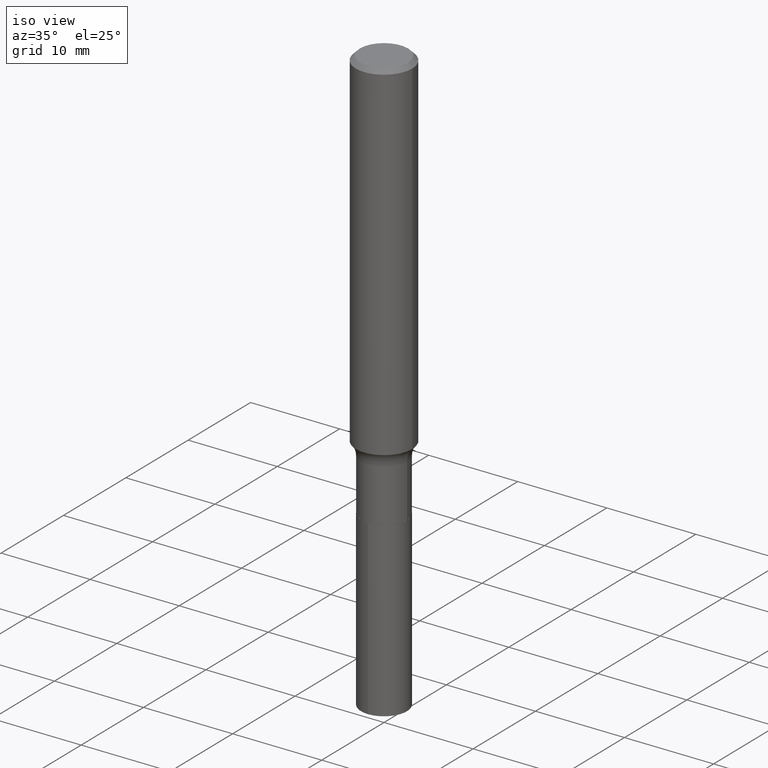
[diagram: clean part render]
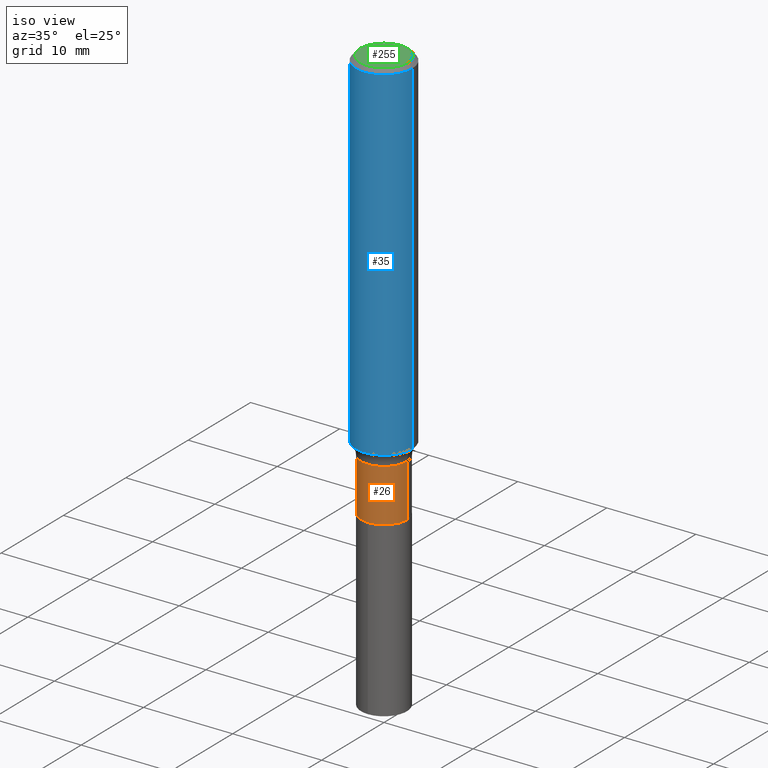
[diagram: same view with three faces highlighted in distinct colors, each labeled with its STEP entity id]
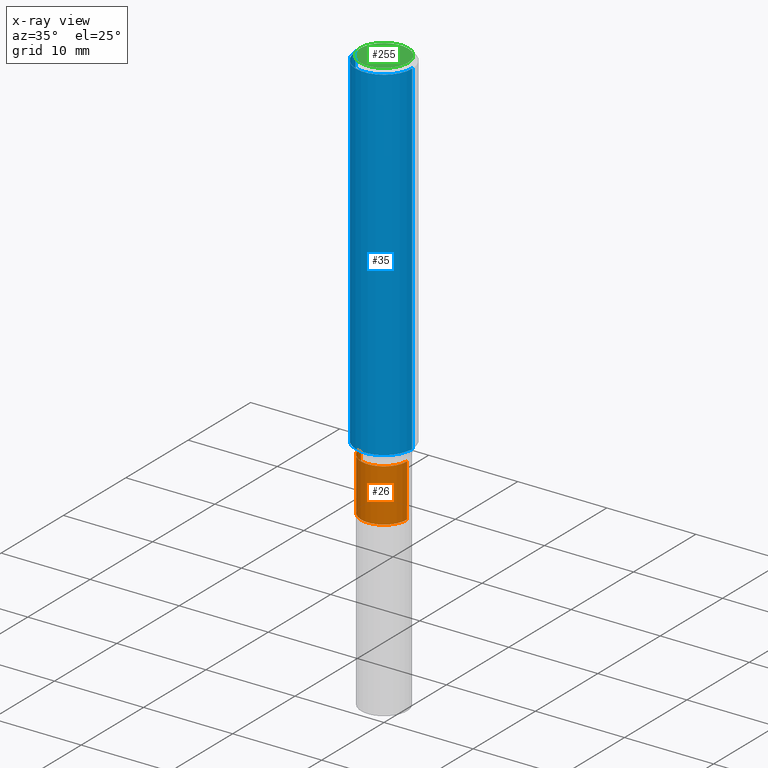
[diagram: x-ray of the same camera — body ghosted, the three highlighted faces saturated]
A machine part, iso view with three faces highlighted in distinct colors.
The next image is the same camera in x-ray (body ghosted, the three faces saturated) — at least one of them is partly hidden behind the body in this view.
Their STEP definitions:

[orange] entity #26 — the highlighted cylindrical surface (edge-blend (fillet) strip) has radius 2.5794 mm, axis along (-0, 0, 1).
#13 = AXIS2_PLACEMENT_3D ( 'NONE', #477, #196, #19 ) ;
#19 = DIRECTION ( 'NONE',  ( 1.000000000000000000, -6.982962677686266711E-15, 4.876176775795935793E-29 ) ) ;
#24 = CARTESIAN_POINT ( 'NONE',  ( -0.1015500000000000014, -5.252542996663183258E-15, -1.827600000000000113 ) ) ;
#25 = DIRECTION ( 'NONE',  ( -2.445468806185136597E-29, 3.491481338843145583E-15, 1.000000000000000000 ) ) ;
#26 = ADVANCED_FACE ( 'NONE', ( #200 ), #211, .T. ) ;
#50 = VERTEX_POINT ( 'NONE', #207 ) ;
#73 = ORIENTED_EDGE ( 'NONE', *, *, #402, .T. ) ;
#87 = CARTESIAN_POINT ( 'NONE',  ( 0.1015499999999999736, -6.276286854704436544E-15, -1.594500000000000250 ) ) ;
#118 = VERTEX_POINT ( 'NONE', #87 ) ;
#138 = EDGE_CURVE ( 'NONE', #243, #118, #373, .T. ) ;
#139 = CARTESIAN_POINT ( 'NONE',  ( 0.1015499999999999875, -7.091198599190402890E-16, 4.951757515820772372E-30 ) ) ;
#151 = AXIS2_PLACEMENT_3D ( 'NONE', #168, #325, #291 ) ;
#166 = ORIENTED_EDGE ( 'NONE', *, *, #138, .F. ) ;
#168 = CARTESIAN_POINT ( 'NONE',  ( 3.899300011462200653E-29, -5.567166994785396551E-15, -1.594500000000000250 ) ) ;
#169 = DIRECTION ( 'NONE',  ( -2.445468806185136877E-29, 3.491481338843145188E-15, 1.000000000000000000 ) ) ;
#196 = DIRECTION ( 'NONE',  ( -2.445468806185136597E-29, 3.491481338843145583E-15, 1.000000000000000000 ) ) ;
#200 = FACE_OUTER_BOUND ( 'NONE', #396, .T. ) ;
#206 = VECTOR ( 'NONE', #169, 39.37007874015748143 ) ;
#207 = CARTESIAN_POINT ( 'NONE',  ( 0.1015500000000000014, -7.090151154788773851E-15, -1.827600000000000113 ) ) ;
#211 = CYLINDRICAL_SURFACE ( 'NONE', #13, 0.1015499999999999875 ) ;
#221 = CARTESIAN_POINT ( 'NONE',  ( -0.1015499999999999875, 7.215561481643816499E-16, -4.995178584153856401E-30 ) ) ;
#224 = LINE ( 'NONE', #221, #333 ) ;
#225 = CIRCLE ( 'NONE', #447, 0.1015500000000000014 ) ;
#243 = VERTEX_POINT ( 'NONE', #285 ) ;
#271 = ORIENTED_EDGE ( 'NONE', *, *, #439, .T. ) ;
#285 = CARTESIAN_POINT ( 'NONE',  ( -0.1015499999999999736, -5.252542996663183258E-15, -1.594500000000000250 ) ) ;
#288 = LINE ( 'NONE', #139, #206 ) ;
#291 = DIRECTION ( 'NONE',  ( 1.000000000000000000, -6.982962677686266711E-15, 0.000000000000000000 ) ) ;
#322 = CARTESIAN_POINT ( 'NONE',  ( 4.469338790183956184E-29, -6.381031294869733858E-15, -1.827600000000000113 ) ) ;
#324 = ORIENTED_EDGE ( 'NONE', *, *, #479, .F. ) ;
#325 = DIRECTION ( 'NONE',  ( -2.445468806185136597E-29, 3.491481338843145583E-15, 1.000000000000000000 ) ) ;
#333 = VECTOR ( 'NONE', #408, 39.37007874015748143 ) ;
#373 = CIRCLE ( 'NONE', #151, 0.1015499999999999736 ) ;
#396 = EDGE_LOOP ( 'NONE', ( #324, #271, #73, #166 ) ) ;
#402 = EDGE_CURVE ( 'NONE', #50, #118, #288, .T. ) ;
#408 = DIRECTION ( 'NONE',  ( -2.445468806185136877E-29, 3.491481338843145188E-15, 1.000000000000000000 ) ) ;
#429 = DIRECTION ( 'NONE',  ( 1.000000000000000000, -6.982962677686264344E-15, 0.000000000000000000 ) ) ;
#439 = EDGE_CURVE ( 'NONE', #472, #50, #225, .T. ) ;
#447 = AXIS2_PLACEMENT_3D ( 'NONE', #322, #25, #429 ) ;
#472 = VERTEX_POINT ( 'NONE', #24 ) ;
#477 = CARTESIAN_POINT ( 'NONE',  ( 0.000000000000000000, 0.000000000000000000, 0.000000000000000000 ) ) ;
#479 = EDGE_CURVE ( 'NONE', #472, #243, #224, .T. ) ;

[blue] entity #35 — the highlighted cylindrical surface (edge-blend (fillet) strip) has radius 3.175 mm, axis along (-0, 0, 1).
#7 = ORIENTED_EDGE ( 'NONE', *, *, #455, .T. ) ;
#8 = DIRECTION ( 'NONE',  ( 1.000000000000000000, -6.982962677686267499E-15, 0.000000000000000000 ) ) ;
#35 = ADVANCED_FACE ( 'NONE', ( #366 ), #130, .T. ) ;
#66 = CARTESIAN_POINT ( 'NONE',  ( -0.1250000000000002220, -4.484331131856369405E-15, -1.538747892416519214 ) ) ;
#75 = VERTEX_POINT ( 'NONE', #90 ) ;
#90 = CARTESIAN_POINT ( 'NONE',  ( 0.1250000000000000000, -9.383356098140928781E-16, -0.01875000000000013115 ) ) ;
#99 = DIRECTION ( 'NONE',  ( -2.445468806185136877E-29, 3.491481338843145188E-15, 1.000000000000000000 ) ) ;
#111 = AXIS2_PLACEMENT_3D ( 'NONE', #212, #292, #365 ) ;
#120 = VERTEX_POINT ( 'NONE', #386 ) ;
#129 = ORIENTED_EDGE ( 'NONE', *, *, #188, .F. ) ;
#130 = CYLINDRICAL_SURFACE ( 'NONE', #392, 0.1250000000000001110 ) ;
#144 = DIRECTION ( 'NONE',  ( -2.445468806185136877E-29, 3.491481338843145188E-15, 1.000000000000000000 ) ) ;
#154 = VERTEX_POINT ( 'NONE', #381 ) ;
#156 = DIRECTION ( 'NONE',  ( -2.445468806185136597E-29, 3.491481338843145583E-15, 1.000000000000000000 ) ) ;
#182 = CARTESIAN_POINT ( 'NONE',  ( 3.762959971487720455E-29, -5.372509551556497004E-15, -1.538747892416519214 ) ) ;
#188 = EDGE_CURVE ( 'NONE', #427, #154, #318, .T. ) ;
#194 = ORIENTED_EDGE ( 'NONE', *, *, #450, .F. ) ;
#212 = CARTESIAN_POINT ( 'NONE',  ( 4.585254011597162998E-31, -6.546527510330944066E-17, -0.01875000000000013115 ) ) ;
#213 = ORIENTED_EDGE ( 'NONE', *, *, #219, .T. ) ;
#219 = EDGE_CURVE ( 'NONE', #427, #120, #368, .T. ) ;
#223 = AXIS2_PLACEMENT_3D ( 'NONE', #182, #302, #8 ) ;
#240 = VECTOR ( 'NONE', #144, 39.37007874015748143 ) ;
#272 = VECTOR ( 'NONE', #99, 39.37007874015748143 ) ;
#286 = EDGE_LOOP ( 'NONE', ( #129, #213, #7, #194 ) ) ;
#292 = DIRECTION ( 'NONE',  ( -2.445468806185136597E-29, 3.491481338843145583E-15, 1.000000000000000000 ) ) ;
#297 = LINE ( 'NONE', #432, #272 ) ;
#302 = DIRECTION ( 'NONE',  ( -2.445468806185136597E-29, 3.491481338843145583E-15, 1.000000000000000000 ) ) ;
#318 = LINE ( 'NONE', #347, #240 ) ;
#347 = CARTESIAN_POINT ( 'NONE',  ( -0.1250000000000001110, 8.881784197001260212E-16, -6.148668862818637832E-30 ) ) ;
#364 = DIRECTION ( 'NONE',  ( 1.000000000000000000, -6.982962677686266711E-15, 4.876176775795935232E-29 ) ) ;
#365 = DIRECTION ( 'NONE',  ( 1.000000000000000000, -6.982962677686266711E-15, 0.000000000000000000 ) ) ;
#366 = FACE_OUTER_BOUND ( 'NONE', #286, .T. ) ;
#368 = CIRCLE ( 'NONE', #223, 0.1250000000000001943 ) ;
#381 = CARTESIAN_POINT ( 'NONE',  ( -0.1250000000000000000, -1.830808993629777053E-15, -0.01875000000000013115 ) ) ;
#386 = CARTESIAN_POINT ( 'NONE',  ( 0.1250000000000002220, -6.245379886267282709E-15, -1.538747892416519214 ) ) ;
#392 = AXIS2_PLACEMENT_3D ( 'NONE', #425, #156, #364 ) ;
#425 = CARTESIAN_POINT ( 'NONE',  ( 0.000000000000000000, 0.000000000000000000, 0.000000000000000000 ) ) ;
#427 = VERTEX_POINT ( 'NONE', #66 ) ;
#432 = CARTESIAN_POINT ( 'NONE',  ( 0.1250000000000001110, -8.728703347107841277E-16, 6.095220969744924646E-30 ) ) ;
#450 = EDGE_CURVE ( 'NONE', #154, #75, #486, .T. ) ;
#455 = EDGE_CURVE ( 'NONE', #120, #75, #297, .T. ) ;
#486 = CIRCLE ( 'NONE', #111, 0.1250000000000000000 ) ;

[green] entity #255 — the highlighted planar face has unit normal (0, -0, -1).
#15 = DIRECTION ( 'NONE',  ( -2.445468806185136597E-29, 3.491481338843145583E-15, 1.000000000000000000 ) ) ;
#31 = EDGE_CURVE ( 'NONE', #256, #162, #110, .T. ) ;
#49 = EDGE_CURVE ( 'NONE', #162, #256, #483, .T. ) ;
#89 = EDGE_LOOP ( 'NONE', ( #148, #135 ) ) ;
#104 = AXIS2_PLACEMENT_3D ( 'NONE', #122, #308, #201 ) ;
#110 = CIRCLE ( 'NONE', #337, 0.1062499999999999972 ) ;
#122 = CARTESIAN_POINT ( 'NONE',  ( -7.955031918821649840E-47, 1.135767727816383790E-32, 3.252968060235157457E-18 ) ) ;
#135 = ORIENTED_EDGE ( 'NONE', *, *, #49, .T. ) ;
#148 = ORIENTED_EDGE ( 'NONE', *, *, #31, .T. ) ;
#162 = VERTEX_POINT ( 'NONE', #459 ) ;
#201 = DIRECTION ( 'NONE',  ( -1.000000000000000000, 6.982962677686265922E-15, -4.876176775795935793E-29 ) ) ;
#255 = ADVANCED_FACE ( 'NONE', ( #457 ), #267, .F. ) ;
#256 = VERTEX_POINT ( 'NONE', #313 ) ;
#267 = PLANE ( 'NONE',  #104 ) ;
#270 = AXIS2_PLACEMENT_3D ( 'NONE', #312, #473, #420 ) ;
#284 = DIRECTION ( 'NONE',  ( 1.000000000000000000, -6.982962677686266711E-15, 4.875930095424100059E-29 ) ) ;
#287 = CARTESIAN_POINT ( 'NONE',  ( -1.591006383764329968E-46, 2.271535455632767580E-32, 6.505936120470314915E-18 ) ) ;
#308 = DIRECTION ( 'NONE',  ( 2.438088387897960049E-29, -3.491481338843145188E-15, -1.000000000000000000 ) ) ;
#312 = CARTESIAN_POINT ( 'NONE',  ( -1.591006383764329968E-46, 2.271535455632767580E-32, 6.505936120470314915E-18 ) ) ;
#313 = CARTESIAN_POINT ( 'NONE',  ( -0.1062499999999999972, 7.746724220558198188E-16, 6.505936120465012444E-18 ) ) ;
#337 = AXIS2_PLACEMENT_3D ( 'NONE', #287, #15, #284 ) ;
#420 = DIRECTION ( 'NONE',  ( 1.000000000000000000, -6.982962677686266711E-15, 4.875930095424100059E-29 ) ) ;
#457 = FACE_OUTER_BOUND ( 'NONE', #89, .T. ) ;
#459 = CARTESIAN_POINT ( 'NONE',  ( 0.1062499999999999972, -8.259777185439879685E-16, 6.505936120475796882E-18 ) ) ;
#473 = DIRECTION ( 'NONE',  ( -2.445468806185136597E-29, 3.491481338843145583E-15, 1.000000000000000000 ) ) ;
#483 = CIRCLE ( 'NONE', #270, 0.1062499999999999972 ) ;